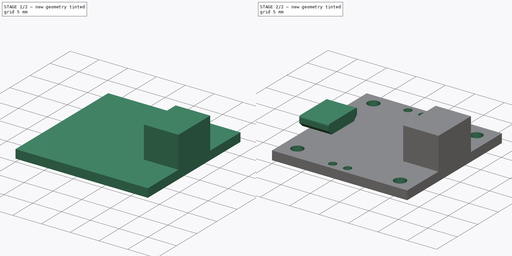
[diagram: build sequence overview — one tinted view per stage of 2, left to right]
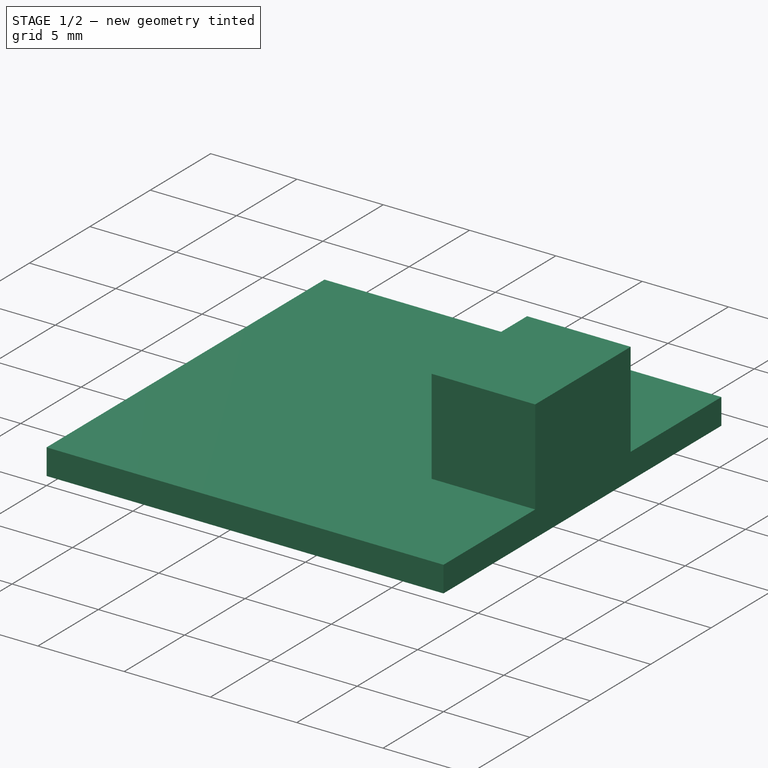
[diagram: stage 1 of 2 — iso view after this stage's code; geometry added in this stage tinted green]
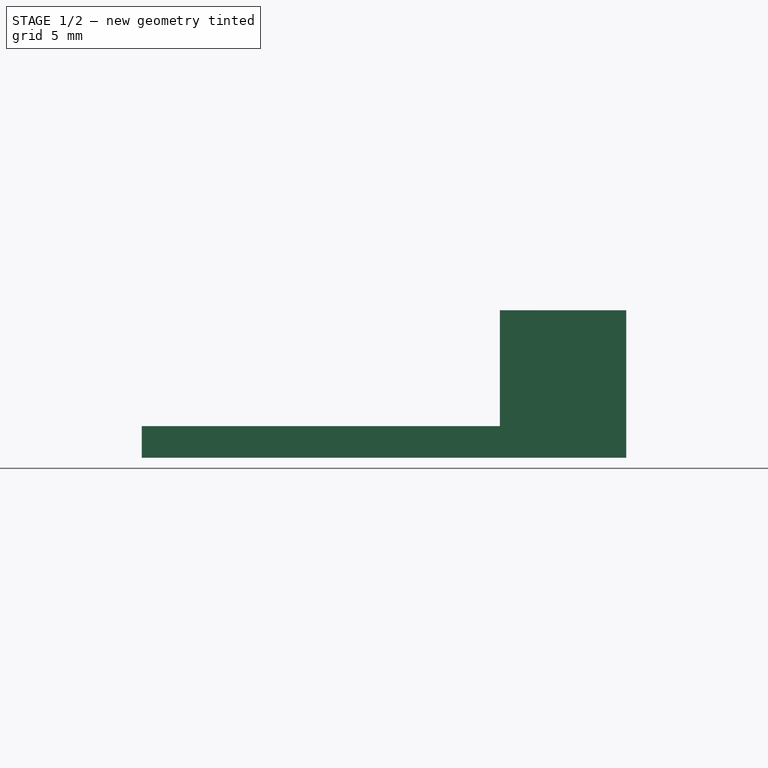
[diagram: stage 1 of 2 — front view after this stage's code; geometry added in this stage tinted green]
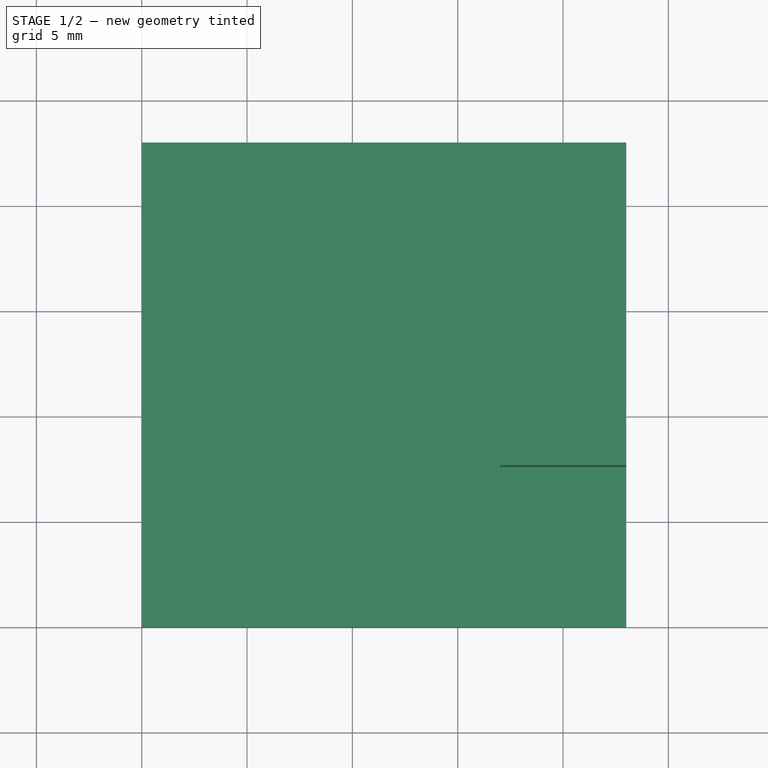
[diagram: stage 1 of 2 — top view after this stage's code; geometry added in this stage tinted green]
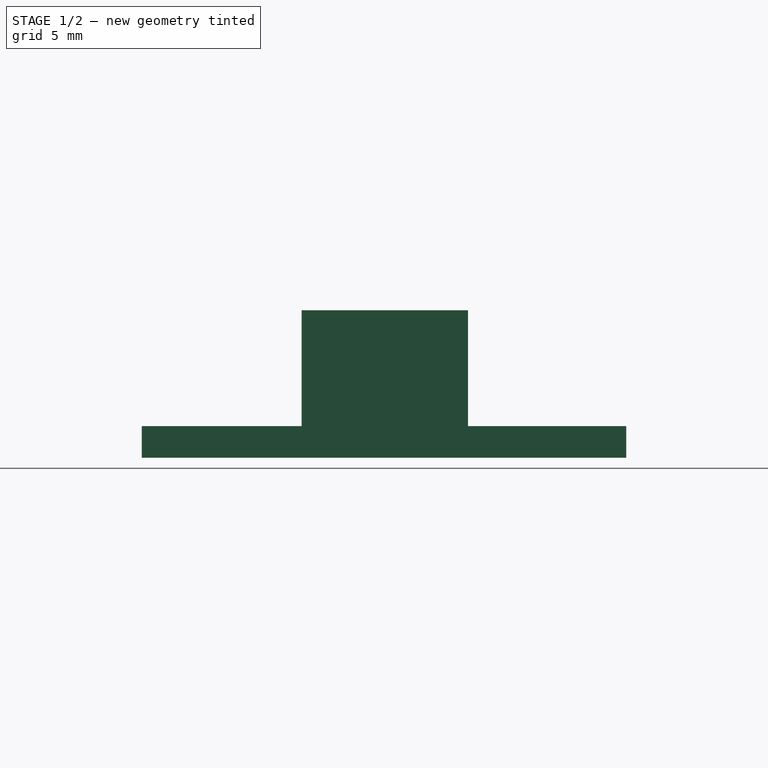
[diagram: stage 1 of 2 — right view after this stage's code; geometry added in this stage tinted green]
FCSTD DOCUMENT  (FreeCAD 0.16R6603 (Git))
Label: sparkfun_lipo_booster
License: All rights reserved
LicenseURL: http://en.wikipedia.org/wiki/All_rights_reserved
objects: Sketcher::SketchObject×3, PartDesign::Pad×2, PartDesign::Pocket×1, Part::Feature×1, Part::MultiFuse×1
note: 11 computed .brp shape members not serialized (recipe doc carries the construction recipe); baked Part::Feature solids carry a one-line shape summary decoded from their .brp

FEATURE [Sketcher::SketchObject] Sketch
  sketch-geometry (4):
    g0: LineSegment StartX=0 StartY=0 StartZ=0 EndX=23 EndY=0 EndZ=0
    g1: LineSegment StartX=23 StartY=0 StartZ=0 EndX=23 EndY=23 EndZ=0
    g2: LineSegment StartX=23 StartY=23 StartZ=0 EndX=0 EndY=23 EndZ=0
    g3: LineSegment StartX=0 StartY=23 StartZ=0 EndX=0 EndY=0 EndZ=0
  constraints (11):
    c: Coincident(g0,g1)
    c: Coincident(g1,g2)
    c: Coincident(g2,g3)
    c: Coincident(g3,g0)
    c: Horizontal(g0)
    c: Horizontal(g2)
    c: Vertical(g1)
    c: Vertical(g3)
    c: Coincident(g0,g-1)
    c: DistanceX(g2) = -23
    c: DistanceY(g1) = 23
FEATURE [PartDesign::Pad] Pad
  Length = 1.5
  Length2 = 100
  Sketch = -> Sketch
  Type = 0
FEATURE [Sketcher::SketchObject] Sketch001
  ExternalGeometry = -> [Pad]
  Placement = pos=(0,0,1.5) rot=(0,0,1;0rad)
  Support = -> Pad [Face6]
  sketch-geometry (4):
    g0: LineSegment StartX=17 StartY=15.4882 StartZ=0 EndX=23 EndY=15.4882 EndZ=0
    g1: LineSegment StartX=23 StartY=15.4882 StartZ=0 EndX=23 EndY=7.58818 EndZ=0
    g2: LineSegment StartX=23 StartY=7.58818 StartZ=0 EndX=17 EndY=7.58818 EndZ=0
    g3: LineSegment StartX=17 StartY=7.58818 StartZ=0 EndX=17 EndY=15.4882 EndZ=0
  constraints (11):
    c: Coincident(g0,g1)
    c: Coincident(g1,g2)
    c: Coincident(g2,g3)
    c: Coincident(g3,g0)
    c: Horizontal(g0)
    c: Horizontal(g2)
    c: Vertical(g1)
    c: Vertical(g3)
    c: PointOnObject(g0,g-3)
    c: DistanceX(g0) = 6
    c: DistanceY(g3) = 7.9
FEATURE [PartDesign::Pad] Pad001
  Length = 5.5
  Length2 = 100
  Sketch = -> Sketch001
  Type = 0
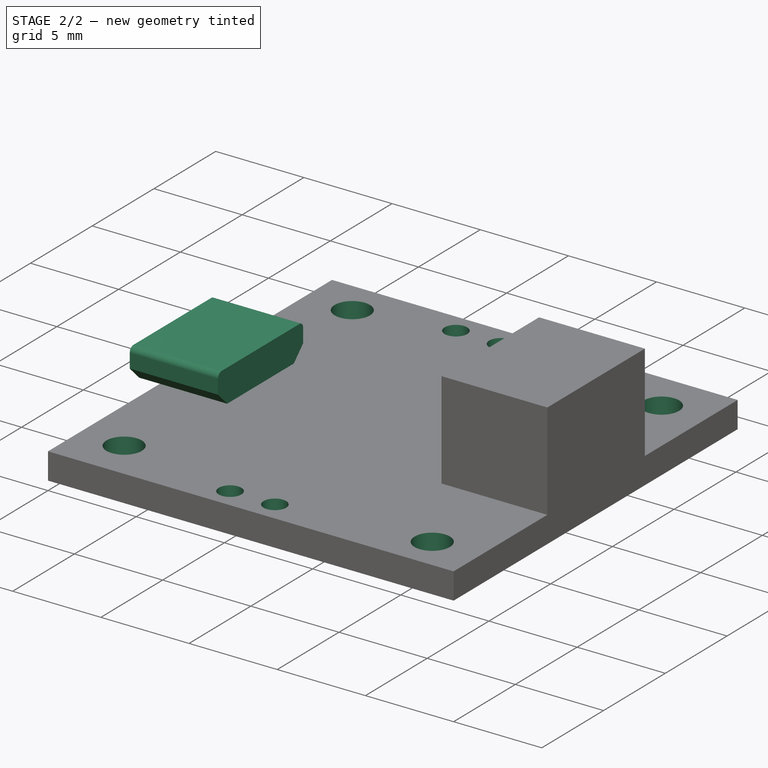
[diagram: stage 2 of 2 — iso view after this stage's code; geometry added in this stage tinted green]
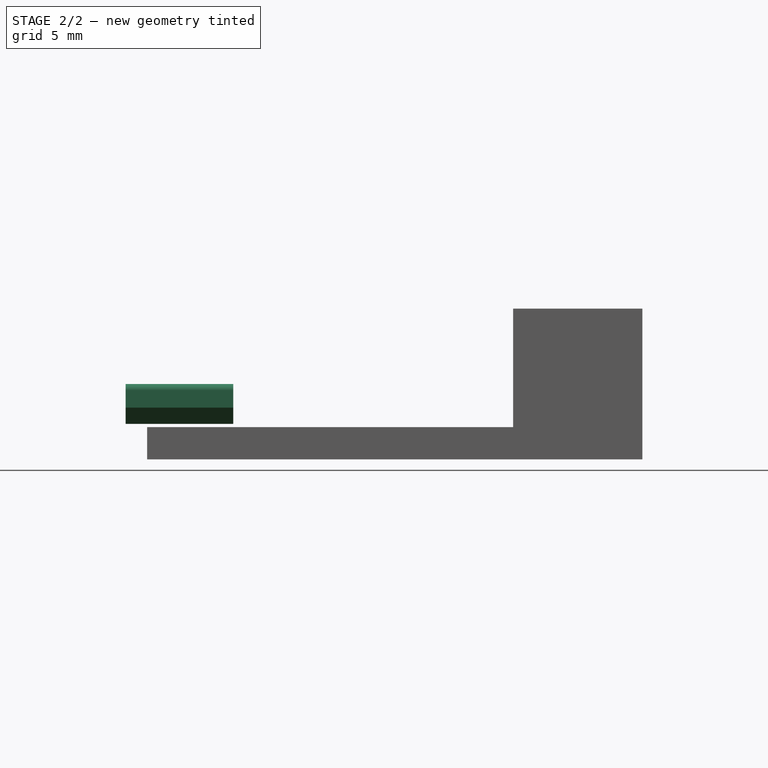
[diagram: stage 2 of 2 — front view after this stage's code; geometry added in this stage tinted green]
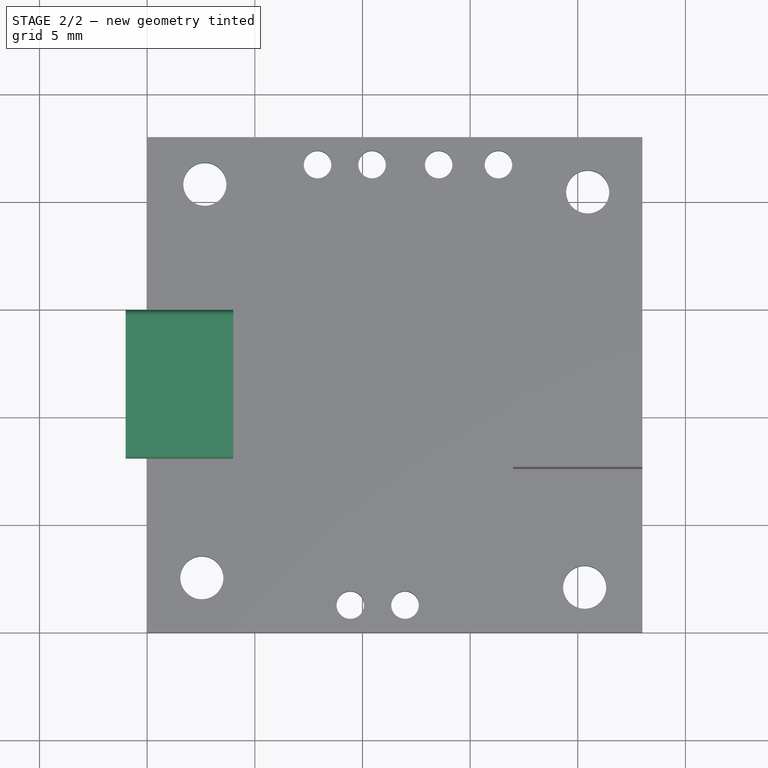
[diagram: stage 2 of 2 — top view after this stage's code; geometry added in this stage tinted green]
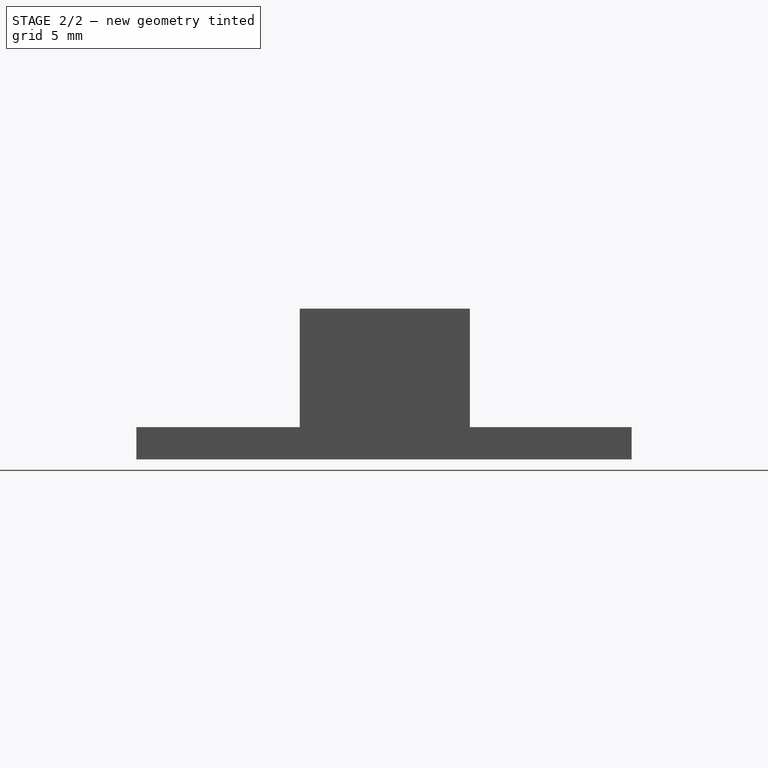
[diagram: stage 2 of 2 — right view after this stage's code; geometry added in this stage tinted green]
FEATURE [Sketcher::SketchObject] Sketch002
  ExternalGeometry = -> [Pad001]
  Placement = pos=(0,0,1.5) rot=(0,0,1;0rad)
  Support = -> Pad001 [Face5]
  sketch-geometry (14):
    g0: Circle CenterX=2.68 CenterY=20.8169 CenterZ=0 NormalX=0 NormalY=0 NormalZ=1 Radius=1
    g1: Circle CenterX=20.46 CenterY=20.46 CenterZ=0 NormalX=0 NormalY=0 NormalZ=1 Radius=1
    g2: Circle CenterX=2.54 CenterY=2.54 CenterZ=0 NormalX=0 NormalY=0 NormalZ=1 Radius=1
    g3: Circle CenterX=20.32 CenterY=2.09703 CenterZ=0 NormalX=0 NormalY=0 NormalZ=1 Radius=1
    g4: Circle CenterX=7.91506 CenterY=21.73 CenterZ=0 NormalX=0 NormalY=0 NormalZ=1 Radius=0.64
    g5: Circle CenterX=10.4456 CenterY=21.73 CenterZ=0 NormalX=0 NormalY=0 NormalZ=1 Radius=0.64
    g6: Circle CenterX=13.5385 CenterY=21.73 CenterZ=0 NormalX=0 NormalY=0 NormalZ=1 Radius=0.64
    g7: Circle CenterX=16.315 CenterY=21.73 CenterZ=0 NormalX=0 NormalY=0 NormalZ=1 Radius=0.64
    g8: LineSegment [constr] StartX=7.91506 StartY=21.73 StartZ=0 EndX=10.4456 EndY=21.73 EndZ=0
    g9: LineSegment [constr] StartX=10.4456 StartY=21.73 StartZ=0 EndX=13.5385 EndY=21.73 EndZ=0
    g10: LineSegment [constr] StartX=13.5385 StartY=21.73 StartZ=0 EndX=16.315 EndY=21.73 EndZ=0
    g11: Circle CenterX=9.43575 CenterY=1.27 CenterZ=0 NormalX=0 NormalY=0 NormalZ=1 Radius=0.64
    g12: Circle CenterX=11.9758 CenterY=1.27 CenterZ=0 NormalX=0 NormalY=0 NormalZ=1 Radius=0.64
    g13: LineSegment [constr] StartX=9.43575 StartY=1.27 StartZ=0 EndX=11.9758 EndY=1.27 EndZ=0
  constraints (31):
    c: DistanceX(g1,g0) = -17.78
    c: Radius(g0) = 1
    c: Radius(g1) = 1
    c: DistanceY(g1,g-3) = 2.54
    c: DistanceX(g1,g-3) = 2.54
    c: Equal(g3,g0)
    c: Equal(g2,g0)
    c: DistanceX(g2,g3) = 17.78
    c: DistanceX(g-1,g2) = 2.54
    c: DistanceY(g-1,g2) = 2.54
    c: DistanceY(g4,g-3) = 1.27
    c: Radius(g4) = 0.64
    c: Equal(g4,g5)
    c: Equal(g5,g6)
    c: Equal(g4,g7)
    c: Coincident(g8,g4)
    c: Coincident(g8,g5)
    c: Horizontal(g8)
    c: Coincident(g9,g5)
    c: Coincident(g9,g6)
    c: Horizontal(g9)
    c: Coincident(g10,g6)
    c: Coincident(g10,g7)
    c: Horizontal(g10)
    c: DistanceY(g-1,g11) = 1.27
    c: Radius(g11) = 0.64
    c: DistanceX(g11,g12) = 2.54
    c: Coincident(g13,g11)
    c: Coincident(g13,g12)
    c: Horizontal(g13)
    c: Equal(g11,g12)
FEATURE [PartDesign::Pocket] Pocket
  Length = 5
  Sketch = -> Sketch002
  Type = 1
FEATURE [Part::Feature] Fillet001001002  label="Fillet004"
  Placement = pos=(-1,2.15,0) rot=(0.57735,0.57735,0.57735;2.0944rad)
  shape: bbox 5 x 6.9 x 1.85 mm, 10 faces (baked)
FEATURE [Part::MultiFuse] Fusion
  Shapes = -> [Fillet001001002,Pocket]
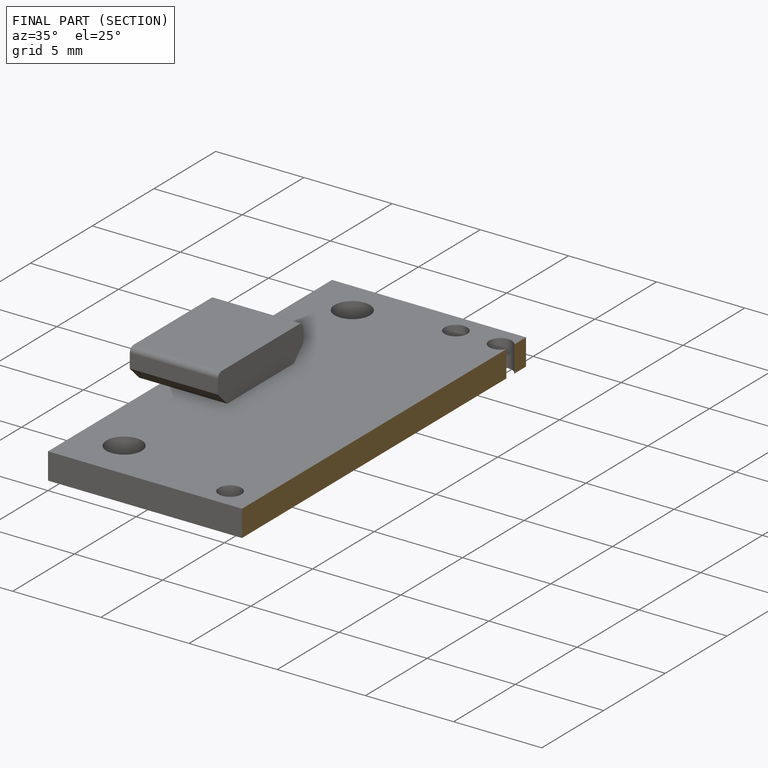
[diagram: finished part — half-section view (interior)]
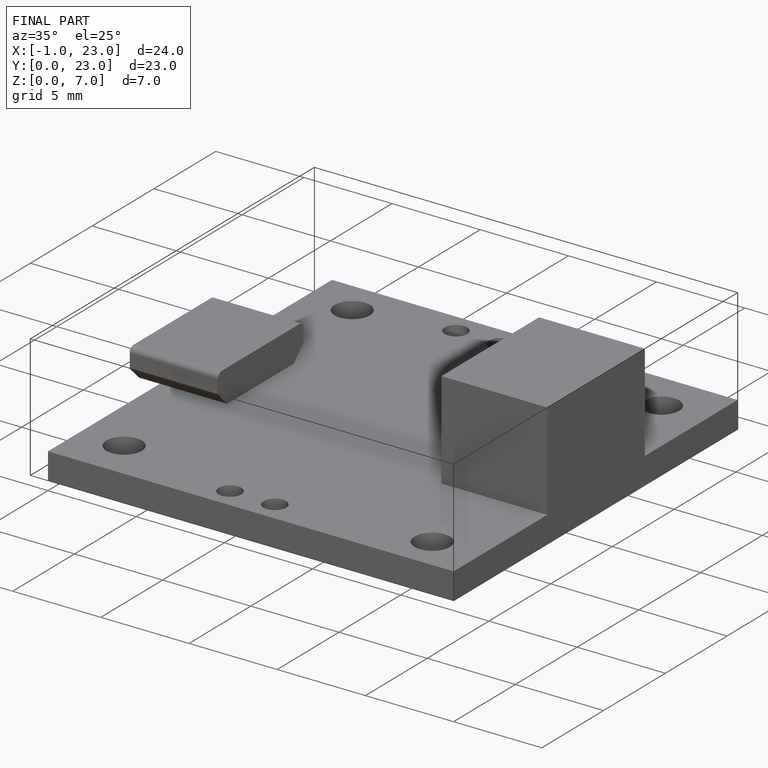
[diagram: finished part — iso view with bounding-box wireframe]
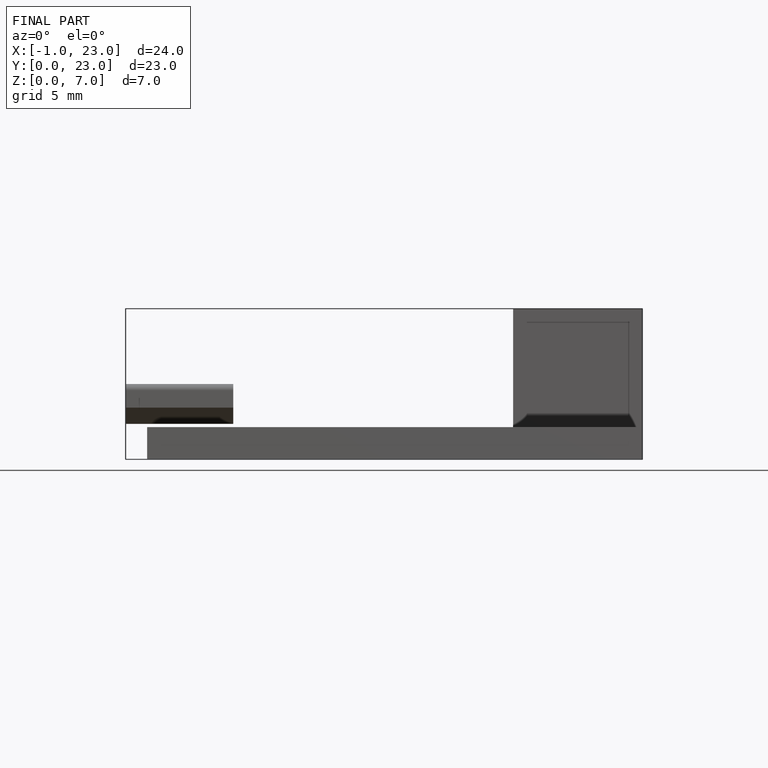
[diagram: finished part — front view with bounding-box wireframe]
